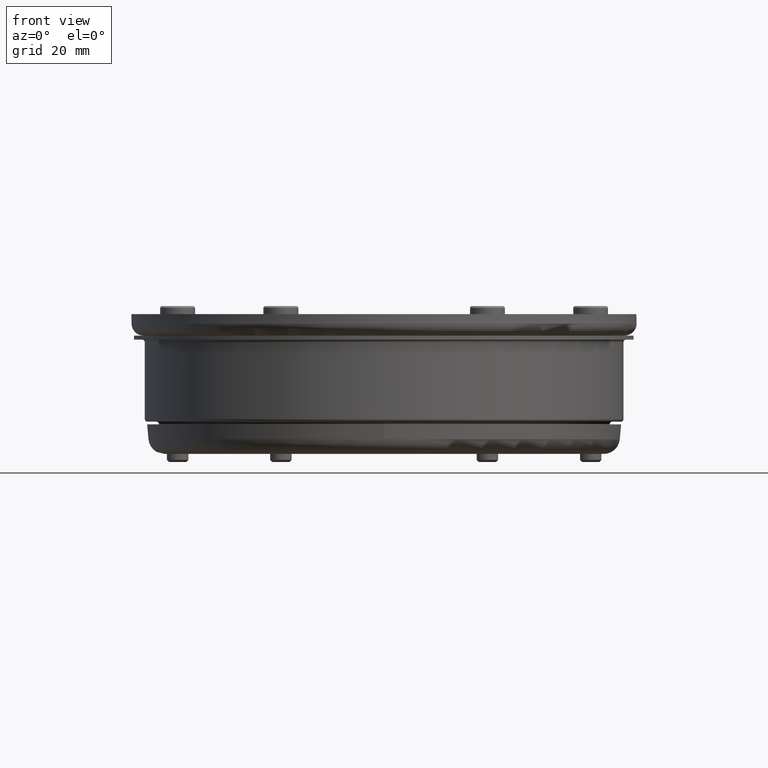
[diagram: clean part render]
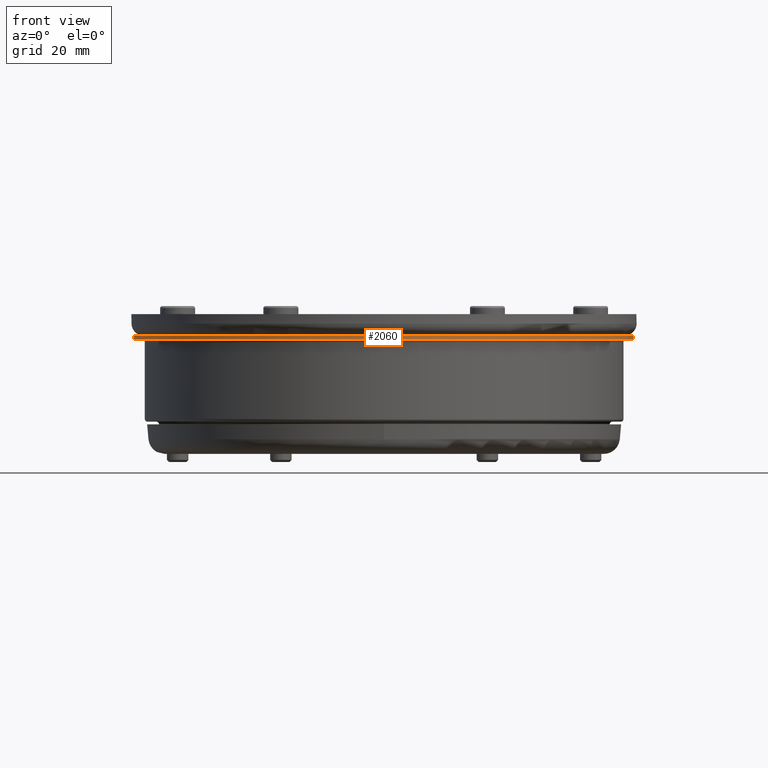
[diagram: same view with one face highlighted and labeled with its STEP entity id]
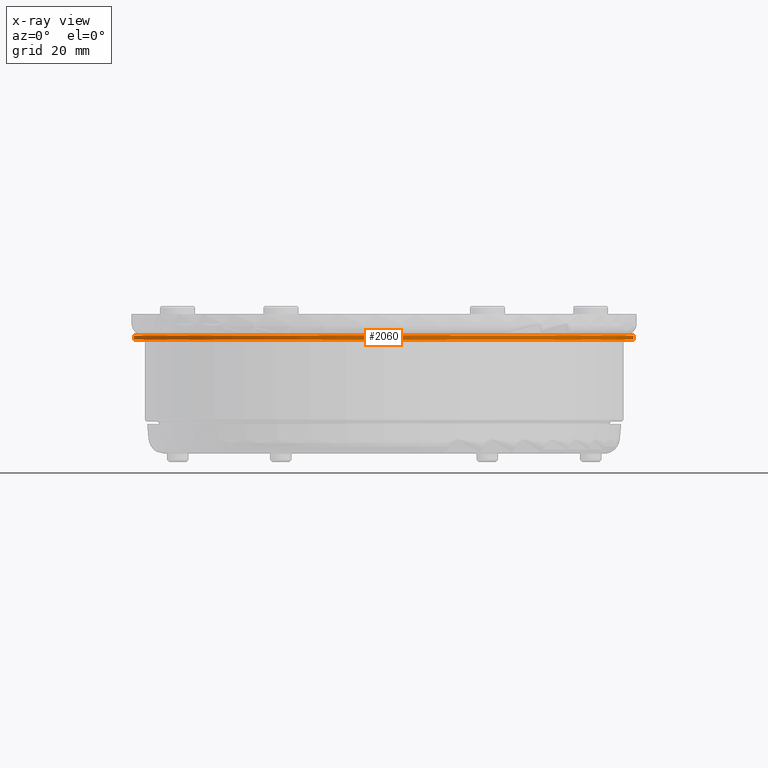
[diagram: x-ray of the same camera — body ghosted, the highlighted face saturated]
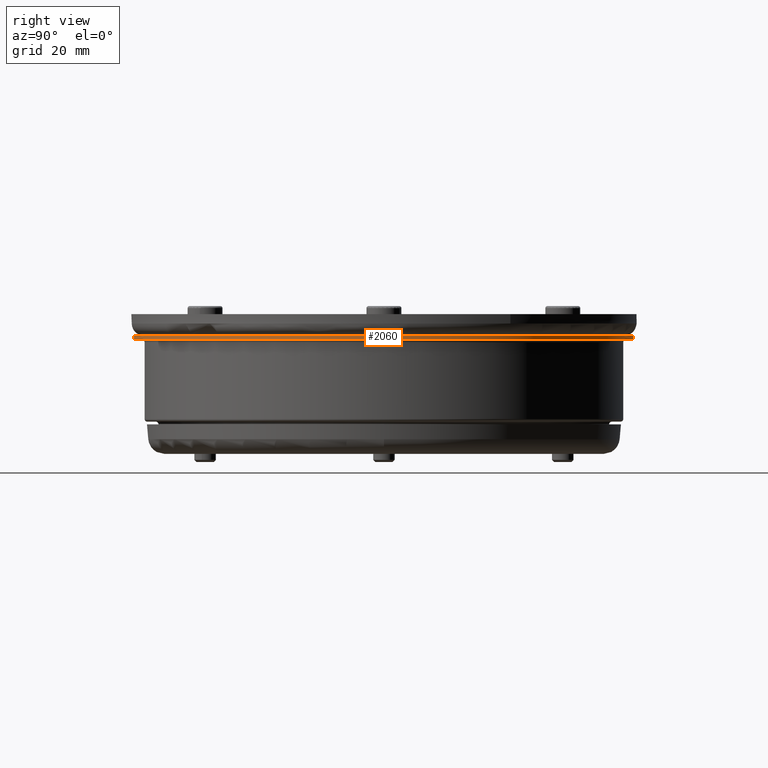
[diagram: same view with one face highlighted and labeled with its STEP entity id]
A machine part, front view. The second image highlights one B-rep face of the part: STEP entity #2060.
The next image is the same camera in x-ray: the body ghosted, the highlighted face saturated — about 0% of this face is hidden behind the body in this view.
A second angle (right view) of the same face is appended — the face is thin or edge-on in the first view.
In plain terms, the highlighted cylindrical surface (bore or boss wall) has radius 93 mm, axis along (0, -0, 1).
Its self-contained STEP definition (entity closure, byte-faithful):
#201=CYLINDRICAL_SURFACE('',#2394,93.);
#282=FACE_OUTER_BOUND('',#413,.T.);
#413=EDGE_LOOP('',(#1658,#1659,#1660,#1661));
#551=LINE('',#3618,#632);
#632=VECTOR('',#2926,92.8);
#771=CIRCLE('',#2359,93.);
#783=CIRCLE('',#2375,93.);
#977=VERTEX_POINT('',#3558);
#987=VERTEX_POINT('',#3585);
#1217=EDGE_CURVE('',#977,#977,#771,.T.);
#1230=EDGE_CURVE('',#987,#987,#783,.T.);
#1243=EDGE_CURVE('',#977,#987,#551,.T.);
#1658=ORIENTED_EDGE('',*,*,#1217,.F.);
#1659=ORIENTED_EDGE('',*,*,#1243,.T.);
#1660=ORIENTED_EDGE('',*,*,#1230,.T.);
#1661=ORIENTED_EDGE('',*,*,#1243,.F.);
#2060=ADVANCED_FACE('',(#282),#201,.T.);
#2359=AXIS2_PLACEMENT_3D('',#3559,#2847,#2848);
#2375=AXIS2_PLACEMENT_3D('',#3586,#2880,#2881);
#2394=AXIS2_PLACEMENT_3D('',#3617,#2924,#2925);
#2847=DIRECTION('center_axis',(0.,0.,1.));
#2848=DIRECTION('ref_axis',(0.,-1.,-1.83697019872103E-16));
#2880=DIRECTION('center_axis',(0.,-1.83697019872103E-16,1.));
#2881=DIRECTION('ref_axis',(0.,-1.,-1.83697019872103E-16));
#2924=DIRECTION('center_axis',(0.,-1.83697019872103E-16,1.));
#2925=DIRECTION('ref_axis',(0.,-1.,-1.83697019872103E-16));
#2926=DIRECTION('',(0.,1.83697019872103E-16,-1.));
#3558=CARTESIAN_POINT('',(-1.13892152320704E-14,93.,40.));
#3559=CARTESIAN_POINT('Origin',(0.,-7.34788079488412E-15,40.));
#3585=CARTESIAN_POINT('',(-1.13892152320704E-14,93.,38.5));
#3586=CARTESIAN_POINT('Origin',(0.,-7.07233526507597E-15,38.5));
#3617=CARTESIAN_POINT('Origin',(0.,-7.21010802998004E-15,39.25));
#3618=CARTESIAN_POINT('',(-1.13892152320704E-14,93.,39.25));